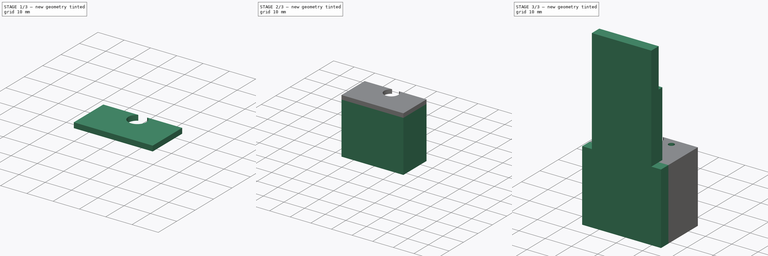
[diagram: build sequence overview — one tinted view per stage of 3, left to right]
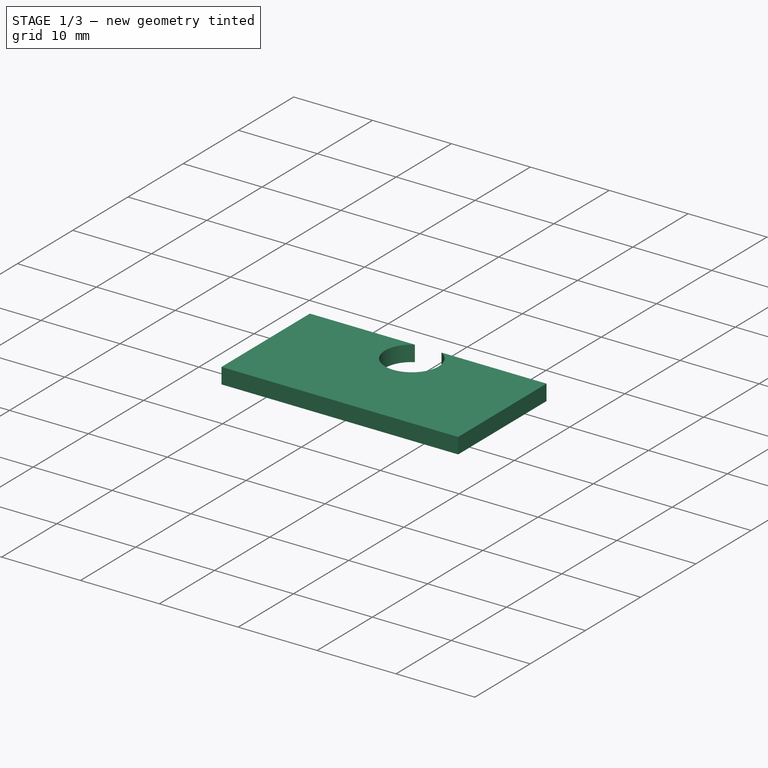
[diagram: stage 1 of 3 — iso view after this stage's code; geometry added in this stage tinted green]
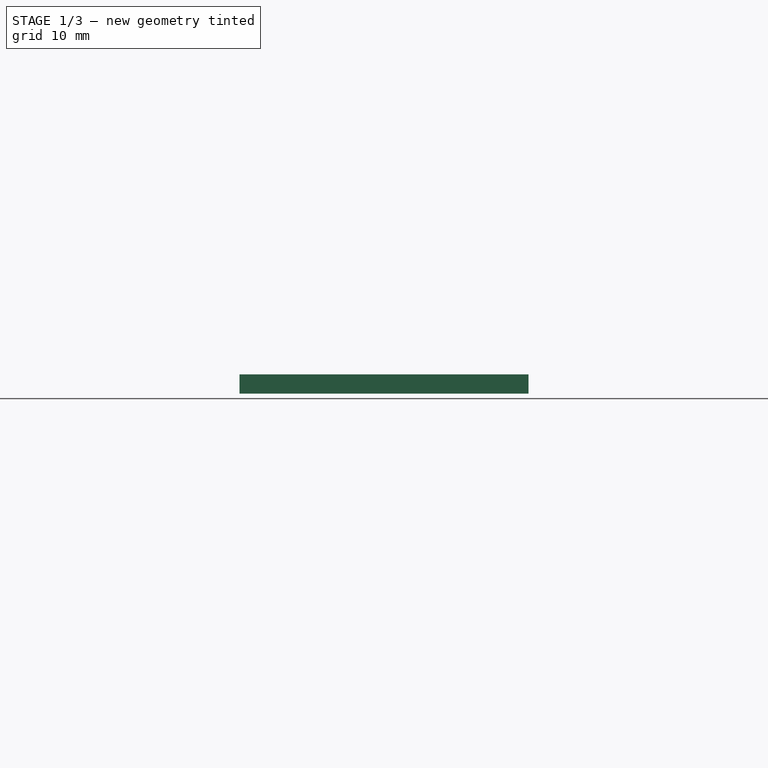
[diagram: stage 1 of 3 — front view after this stage's code; geometry added in this stage tinted green]
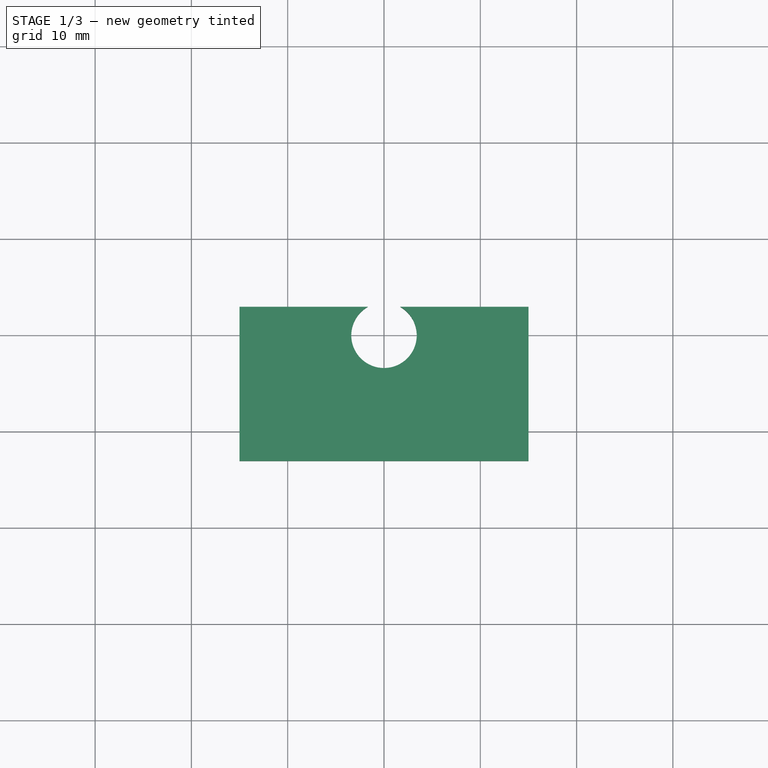
[diagram: stage 1 of 3 — top view after this stage's code; geometry added in this stage tinted green]
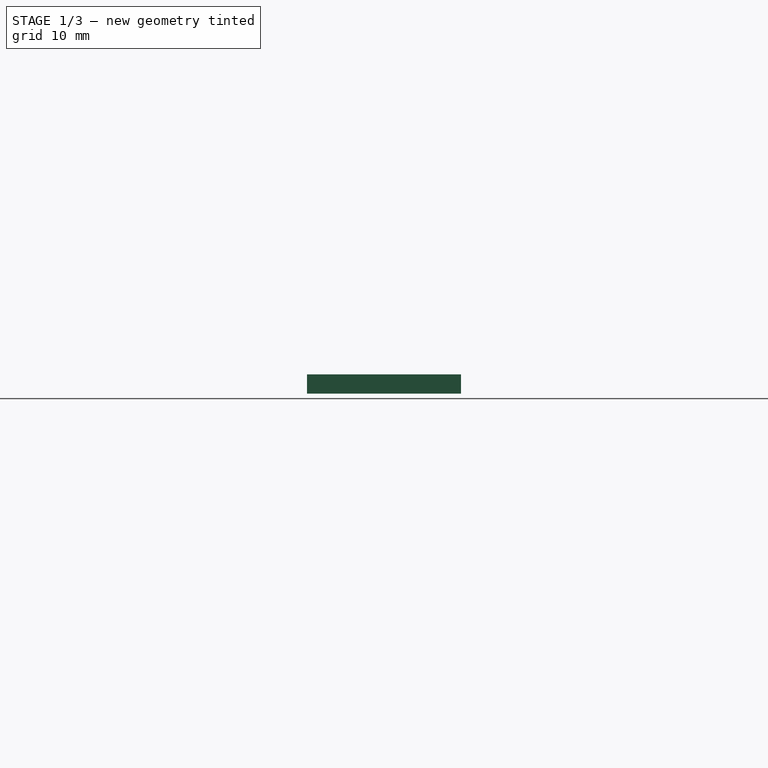
[diagram: stage 1 of 3 — right view after this stage's code; geometry added in this stage tinted green]
FCSTD DOCUMENT  (FreeCAD 0.19R24366 (Git))
Label: MotorHolderConnect_v1
License: All rights reserved
LicenseURL: http://en.wikipedia.org/wiki/All_rights_reserved
objects: Sketcher::SketchObject×7, PartDesign::Pad×5, PartDesign::Pocket×3, App::Part×1, PartDesign::Body×1, App::MeasureDistance×1
note: 24 computed .brp shape members not serialized (recipe doc carries the construction recipe); baked Part::Feature solids carry a one-line shape summary decoded from their .brp

FEATURE [App::Part] Part  label="MotorHolderConnect"
  Origin = -> Origin
FEATURE [Sketcher::SketchObject] Sketch004
  FullyConstrained = false
  Placement = pos=(0,0,30) rot=(0,0,1;0rad)
  sketch-geometry (6):
    g0: LineSegment StartX=-15 StartY=2.95461 StartZ=0 EndX=15 EndY=2.95461 EndZ=0
    g1: LineSegment StartX=15 StartY=2.95461 StartZ=0 EndX=15 EndY=-13.0454 EndZ=0
    g2: LineSegment StartX=15 StartY=-13.0454 StartZ=0 EndX=-15 EndY=-13.0454 EndZ=0
    g3: LineSegment StartX=-15 StartY=-13.0454 StartZ=0 EndX=-15 EndY=2.95461 EndZ=0
    g4: LineSegment StartX=-15 StartY=0 StartZ=0 EndX=0 EndY=0 EndZ=0
    g5: LineSegment StartX=0 StartY=0 StartZ=0 EndX=15 EndY=0 EndZ=0
  constraints (17):
    c: Coincident(g0,g1)
    c: Coincident(g1,g2)
    c: Coincident(g2,g3)
    c: Coincident(g3,g0)
    c: Horizontal(g0)
    c: Horizontal(g2)
    c: Vertical(g1)
    c: Vertical(g3)
    c: DistanceY(g1,g1) = 16
    c: DistanceX(g0,g0) = 30
    c: PointOnObject(g4,g3)
    c: Coincident(g4,g-1)
    c: Horizontal(g4)
    c: PointOnObject(g5,g1)
    c: Horizontal(g5)
    c: Equal(g4,g5)
    c: Coincident(g5,g-1)
FEATURE [PartDesign::Pad] Pad003
  Direction = (1,1,1)
  Length = 2
  Length2 = 100
  Placement = pos=(0,0,30) rot=(0,0,1;0rad)
  Profile = -> Sketch004
  Type = 0
FEATURE [Sketcher::SketchObject] Sketch
  FullyConstrained = false
  MapMode = 5
  Support = -> [XY_Plane]
  sketch-geometry (1):
    g0: Circle CenterX=0 CenterY=0 CenterZ=0 NormalX=0 NormalY=0 NormalZ=1 AngleXU=0 Radius=12
  constraints (1):
    c: Radius(g0) = 12
FEATURE [PartDesign::Pad] Pad  label="MotorMain"
  Direction = (1,1,1)
  Length = 30
  Length2 = 100
  Profile = -> Sketch
  Type = 0
FEATURE [Sketcher::SketchObject] Sketch005
  FullyConstrained = true
  MapMode = 5
  Placement = pos=(0,0,30) rot=(0,0,1;0rad)
  Support = -> [Pad]
  sketch-geometry (1):
    g0: Circle CenterX=0 CenterY=0 CenterZ=0 NormalX=0 NormalY=0 NormalZ=1 AngleXU=0 Radius=3.4
  constraints (2):
    c: Coincident(g0,g-1)
    c: Radius(g0) = 3.4
FEATURE [PartDesign::Pocket] Pocket001
  BaseFeature = -> Pad003
  Length = 20
  Length2 = 100
  Placement = pos=(0,0,30) rot=(0,0,1;0rad)
  Profile = -> Sketch005
  Reversed = true
  Type = 0
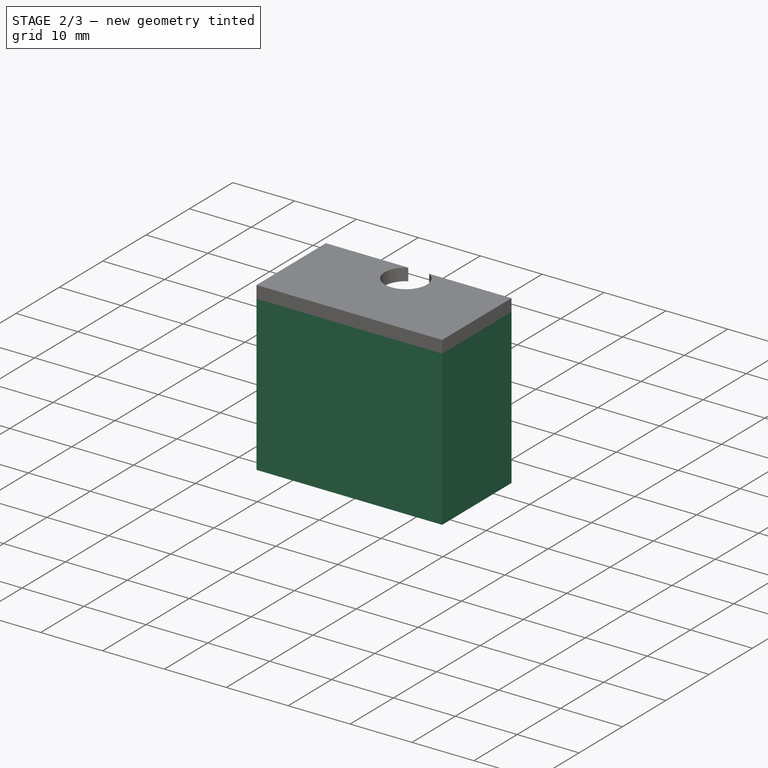
[diagram: stage 2 of 3 — iso view after this stage's code; geometry added in this stage tinted green]
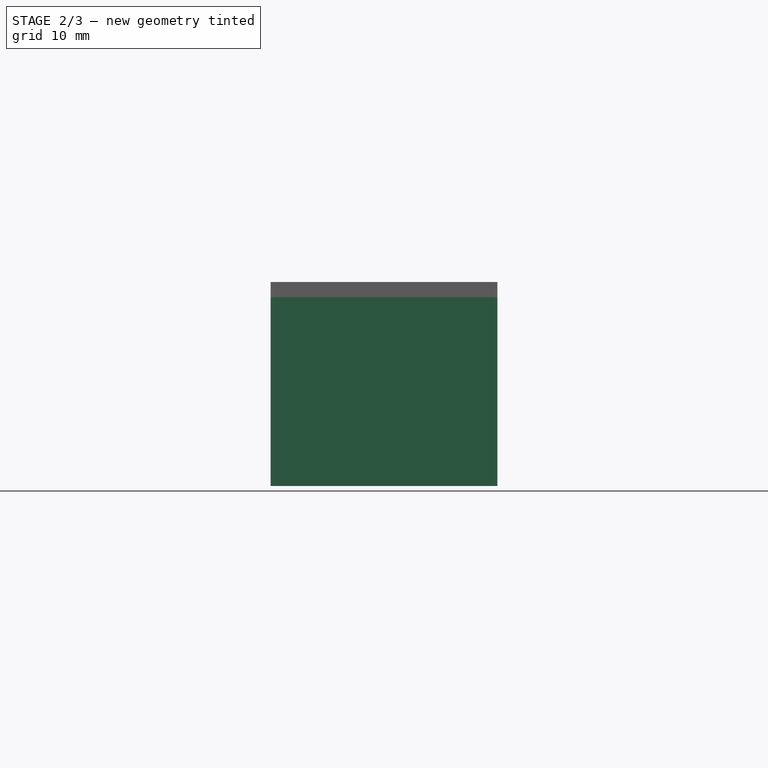
[diagram: stage 2 of 3 — front view after this stage's code; geometry added in this stage tinted green]
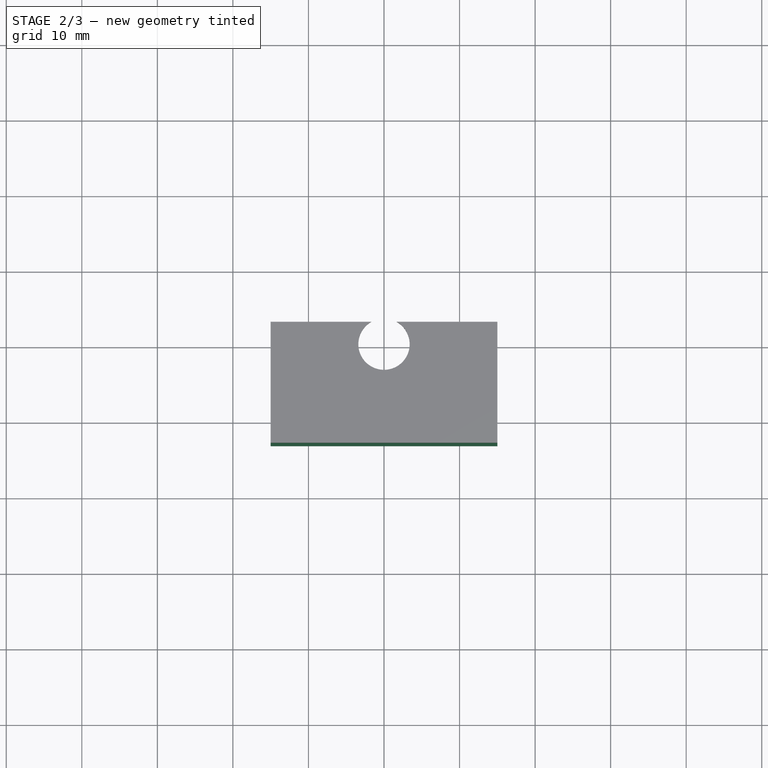
[diagram: stage 2 of 3 — top view after this stage's code; geometry added in this stage tinted green]
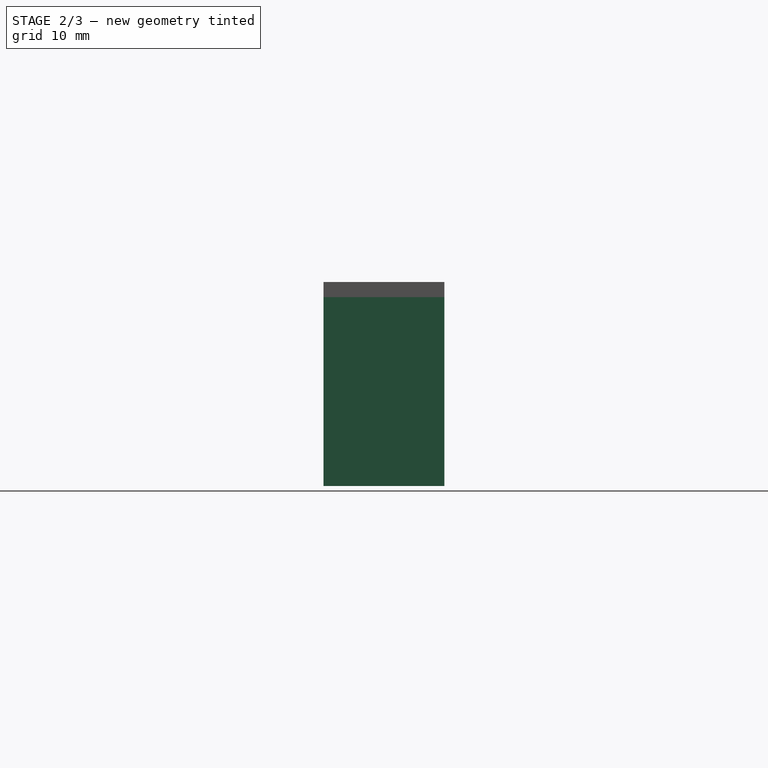
[diagram: stage 2 of 3 — right view after this stage's code; geometry added in this stage tinted green]
FEATURE [PartDesign::Pad] Pad004
  BaseFeature = -> Pocket001
  Direction = (1,1,1)
  Length = 25
  Length2 = 100
  Placement = pos=(0,0,30) rot=(0,0,1;0rad)
  Profile = -> Sketch004
  Reversed = true
  Type = 0
FEATURE [Sketcher::SketchObject] Sketch006
  FullyConstrained = false
  MapMode = 5
  Support = -> [XY_Plane003]
  sketch-geometry (1):
    g0: Circle CenterX=0 CenterY=0 CenterZ=0 NormalX=0 NormalY=0 NormalZ=1 AngleXU=0 Radius=12.2
  constraints (1):
    c: Radius(g0) = 12.2
FEATURE [PartDesign::Pocket] Pocket002
  BaseFeature = -> Pad004
  Length = 30
  Length2 = 100
  Placement = pos=(0,0,30) rot=(0,0,1;0rad)
  Profile = -> Sketch006
  Reversed = true
  Type = 0
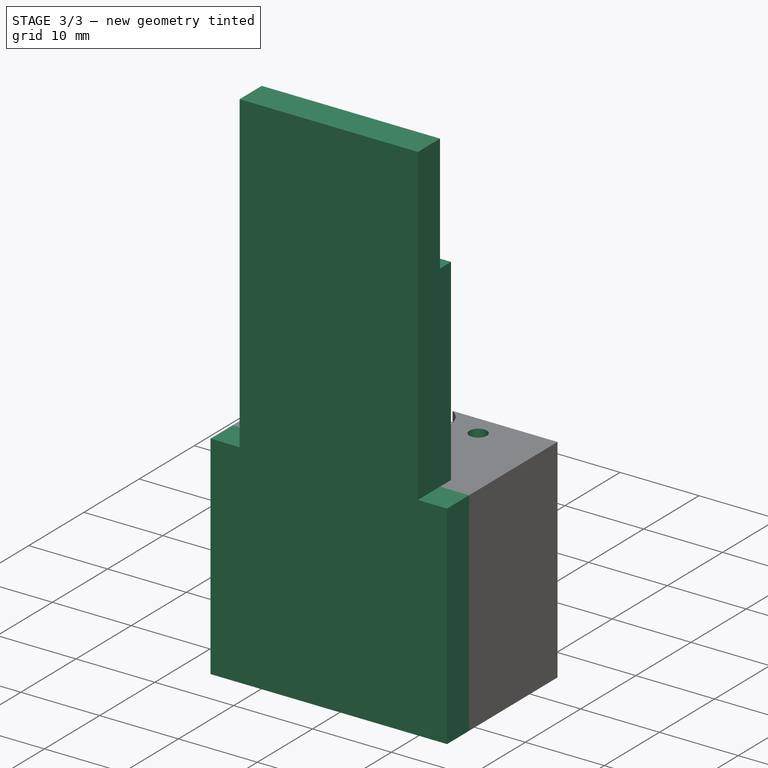
[diagram: stage 3 of 3 — iso view after this stage's code; geometry added in this stage tinted green]
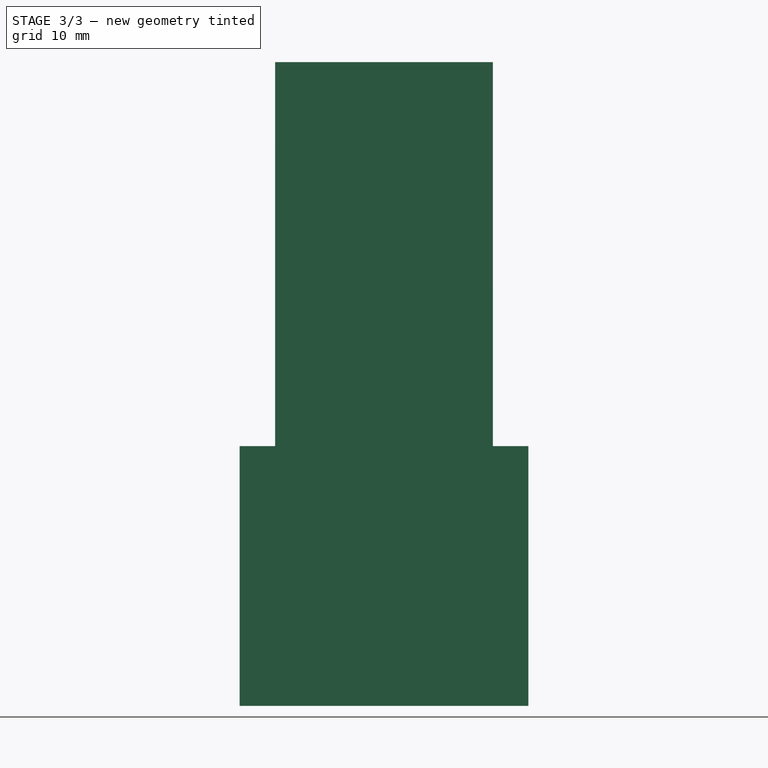
[diagram: stage 3 of 3 — front view after this stage's code; geometry added in this stage tinted green]
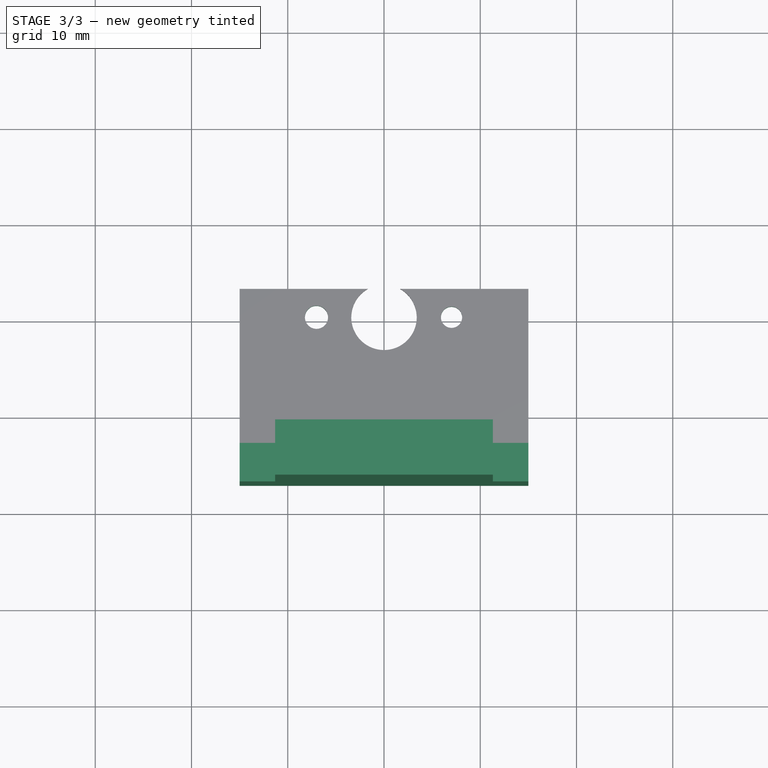
[diagram: stage 3 of 3 — top view after this stage's code; geometry added in this stage tinted green]
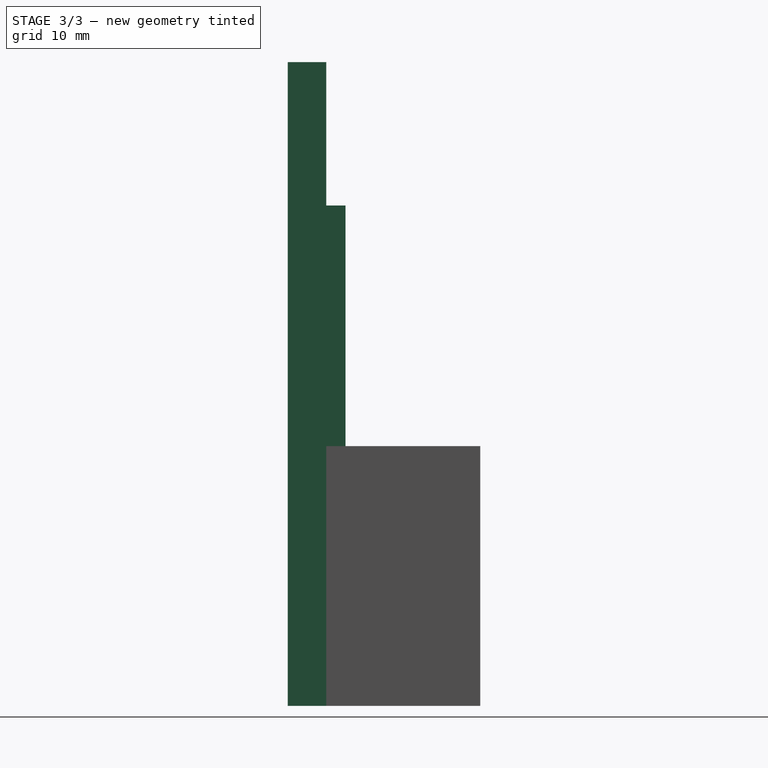
[diagram: stage 3 of 3 — right view after this stage's code; geometry added in this stage tinted green]
FEATURE [Sketcher::SketchObject] Sketch007
  FullyConstrained = false
  MapMode = 5
  Placement = pos=(0,0,32) rot=(0,0,1;0rad)
  Support = -> [Pocket002]
  sketch-geometry (4):
    g0: Circle CenterX=-7.01627 CenterY=0 CenterZ=0 NormalX=0 NormalY=0 NormalZ=1 AngleXU=0 Radius=1.2
    g1: Circle CenterX=7.01627 CenterY=0 CenterZ=0 NormalX=0 NormalY=0 NormalZ=1 AngleXU=0 Radius=1.1
    g2: LineSegment StartX=-7.01627 StartY=0 StartZ=0 EndX=0 EndY=0 EndZ=0
    g3: LineSegment StartX=0 StartY=0 StartZ=0 EndX=7.01627 EndY=0 EndZ=0
  constraints (9):
    c: PointOnObject(g0,g-1)
    c: PointOnObject(g1,g-1)
    c: Diameter(g1) = 2.2
    c: Diameter(g0) = 2.4
    c: Coincident(g2,g0)
    c: Coincident(g2,g-1)
    c: Coincident(g3,g2)
    c: Coincident(g3,g1)
    c: Equal(g3,g2)
FEATURE [PartDesign::Pocket] Pocket003
  BaseFeature = -> Pocket002
  Length = 5
  Length2 = 100
  Placement = pos=(0,0,30) rot=(0,0,1;0rad)
  Profile = -> Sketch007
  Type = 0
FEATURE [Sketcher::SketchObject] Sketch008
  ExternalGeometry = -> [Pocket003]
  FullyConstrained = false
  MapMode = 5
  Placement = pos=(0,0,32) rot=(0,0,1;0rad)
  Support = -> [Pocket003]
  sketch-geometry (6):
    g0: LineSegment StartX=-11.3062 StartY=-11.0454 StartZ=0 EndX=11.3064 EndY=-11.0454 EndZ=0
    g1: LineSegment StartX=11.3064 StartY=-11.0454 StartZ=0 EndX=11.3064 EndY=-13.0454 EndZ=0
    g2: LineSegment StartX=-11.3062 StartY=-13.0454 StartZ=0 EndX=-11.3062 EndY=-11.0454 EndZ=0
    g3: LineSegment StartX=-15 StartY=-13.0454 StartZ=0 EndX=-11.3064 EndY=-13.0454 EndZ=0
    g4: LineSegment StartX=11.3064 StartY=-13.0454 StartZ=0 EndX=15 EndY=-13.0454 EndZ=0
    g5: LineSegment StartX=-11.3062 StartY=-13.0454 StartZ=0 EndX=11.3064 EndY=-13.0454 EndZ=0
  constraints (14):
    c: Coincident(g2,g0)
    c: Horizontal(g0)
    c: Vertical(g1)
    c: Vertical(g2)
    c: Coincident(g1,g0)
    c: PointOnObject(g2,g-3)
    c: DistanceY(g2,g2) = 2
    c: Coincident(g3,g-3)
    c: Coincident(g4,g1)
    c: Coincident(g4,g-3)
    c: Equal(g3,g4)
    c: Coincident(g5,g2)
    c: Coincident(g5,g1)
    c: Horizontal(g5)
FEATURE [PartDesign::Pad] Pad005
  BaseFeature = -> Pocket003
  Direction = (1,1,1)
  Length = 25
  Length2 = 100
  Placement = pos=(0,0,30) rot=(0,0,1;0rad)
  Profile = -> Sketch008
  Type = 0
FEATURE [Sketcher::SketchObject] Sketch009
  ExternalGeometry = -> [Pad005]
  FullyConstrained = true
  MapMode = 5
  Placement = pos=(0,-13.0454,30) rot=(1,0,0;1.5708rad)
  Support = -> [Pad005]
  sketch-geometry (11):
    g0: LineSegment StartX=15 StartY=-25 StartZ=0 EndX=-15 EndY=-25 EndZ=0
    g1: LineSegment StartX=-15 StartY=-25 StartZ=0 EndX=-15 EndY=2 EndZ=0
    g2: LineSegment StartX=-15 StartY=2 StartZ=0 EndX=15 EndY=2 EndZ=0
    g3: LineSegment StartX=15 StartY=2 StartZ=0 EndX=15 EndY=-25 EndZ=0
    g4: LineSegment StartX=11.3064 StartY=2 StartZ=0 EndX=-11.3062 EndY=2 EndZ=0
    g5: LineSegment StartX=-11.3062 StartY=2 StartZ=0 EndX=-11.3062 EndY=41.9 EndZ=0
    g6: LineSegment StartX=-11.3062 StartY=41.9 StartZ=0 EndX=11.3064 EndY=41.9 EndZ=0
    g7: LineSegment StartX=11.3064 StartY=41.9 StartZ=0 EndX=11.3064 EndY=2 EndZ=0
    g8: LineSegment StartX=-11.3062 StartY=57 StartZ=0 EndX=11.3064 EndY=57 EndZ=0
    g9: LineSegment StartX=11.3064 StartY=57 StartZ=0 EndX=11.3064 EndY=41.9 EndZ=0
    g10: LineSegment StartX=-11.3062 StartY=41.9 StartZ=0 EndX=-11.3062 EndY=57 EndZ=0
  constraints (28):
    c: Coincident(g0,g1)
    c: Coincident(g1,g2)
    c: Coincident(g2,g3)
    c: Coincident(g3,g0)
    c: Horizontal(g0)
    c: Horizontal(g2)
    c: Vertical(g1)
    c: Vertical(g3)
    c: Coincident(g0,g-3)
    c: Coincident(g1,g-5)
    c: Coincident(g4,g5)
    c: Coincident(g5,g6)
    c: Coincident(g6,g7)
    c: Coincident(g7,g4)
    c: Horizontal(g6)
    c: Vertical(g5)
    c: Vertical(g7)
    c: Coincident(g4,g-7)
    c: Coincident(g-6,g4)
    c: Horizontal(g8)
    c: Coincident(g9,g8)
    c: Coincident(g9,g6)
    c: Vertical(g9)
    c: Coincident(g10,g5)
    c: Coincident(g10,g8)
    c: Vertical(g10)
    c: DistanceY(g10,g10) = 15.1
    c: DistanceY(g4,g8) = 55
FEATURE [PartDesign::Pad] Pad006
  BaseFeature = -> Pad005
  Direction = (1,1,1)
  Length = 4
  Length2 = 100
  Placement = pos=(0,0,30) rot=(0,0,1;0rad)
  Profile = -> Sketch009
  Type = 0
FEATURE [PartDesign::Body] Body001  label="MotorHolderBody"
  Group = -> [Sketch004,Pad003,Sketch005,Pocket001,Pad004,Sketch006,Pocket002,Sketch007,Pocket003,Sketch008,Pad005,Sketch009,Pad006]
  Origin = -> Origin003
  Tip = -> Pad006
FEATURE [App::MeasureDistance] Distance  label="Distance: 14.90 mm"
  Distance = 14.9
  P1 = (11.3064,-13.0454,71.9)
  P2 = (11.3064,-13.0454,57)
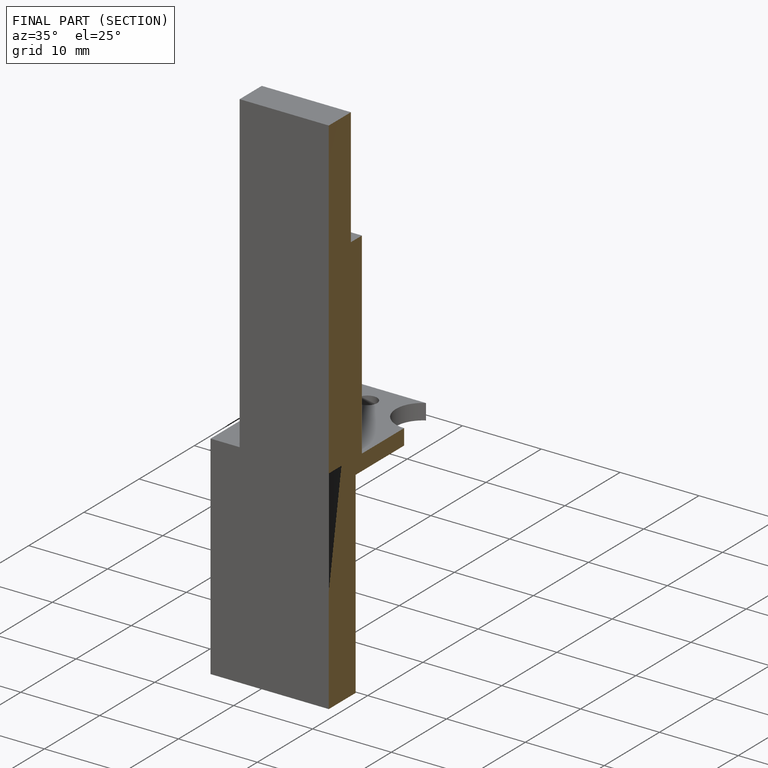
[diagram: finished part — half-section view (interior)]
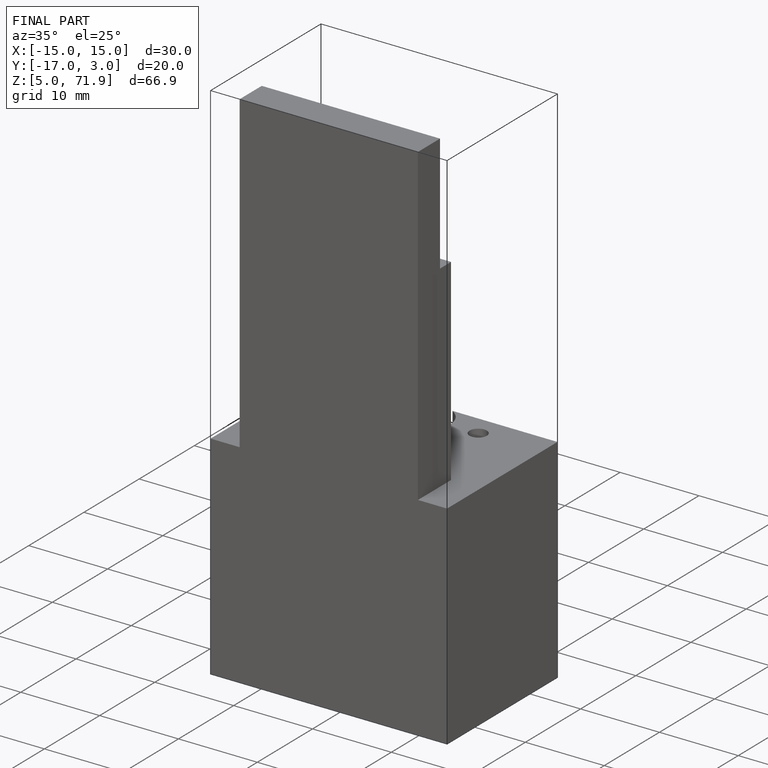
[diagram: finished part — iso view with bounding-box wireframe]
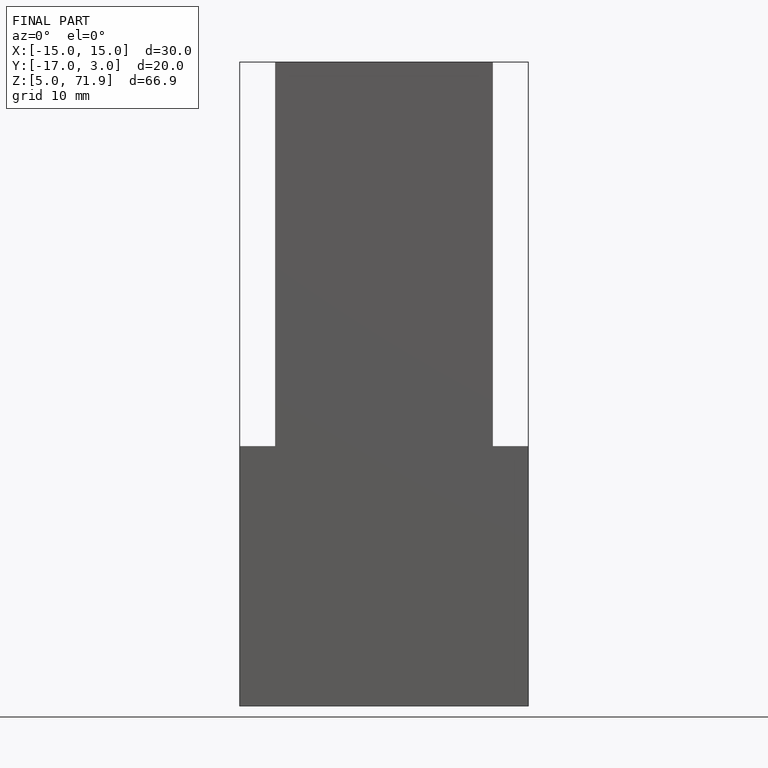
[diagram: finished part — front view with bounding-box wireframe]
